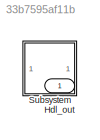
MODEL slx_33b7595af11b
KIND model
CONFIG AbsTol = auto
CONFIG EnableMultiTasking = off
CONFIG FixedStep = auto
CONFIG MaxStep = auto
CONFIG MinStep = auto
CONFIG RelTol = 1e-3
CONFIG SampleTimeConstraint = Unconstrained
CONFIG SolverName = VariableStepAuto
CONFIG StartTime = 0.0
CONFIG StopTime = 10.0
BLOCK [Outport] Hdl_out
  OutDataTypeStr = uint8
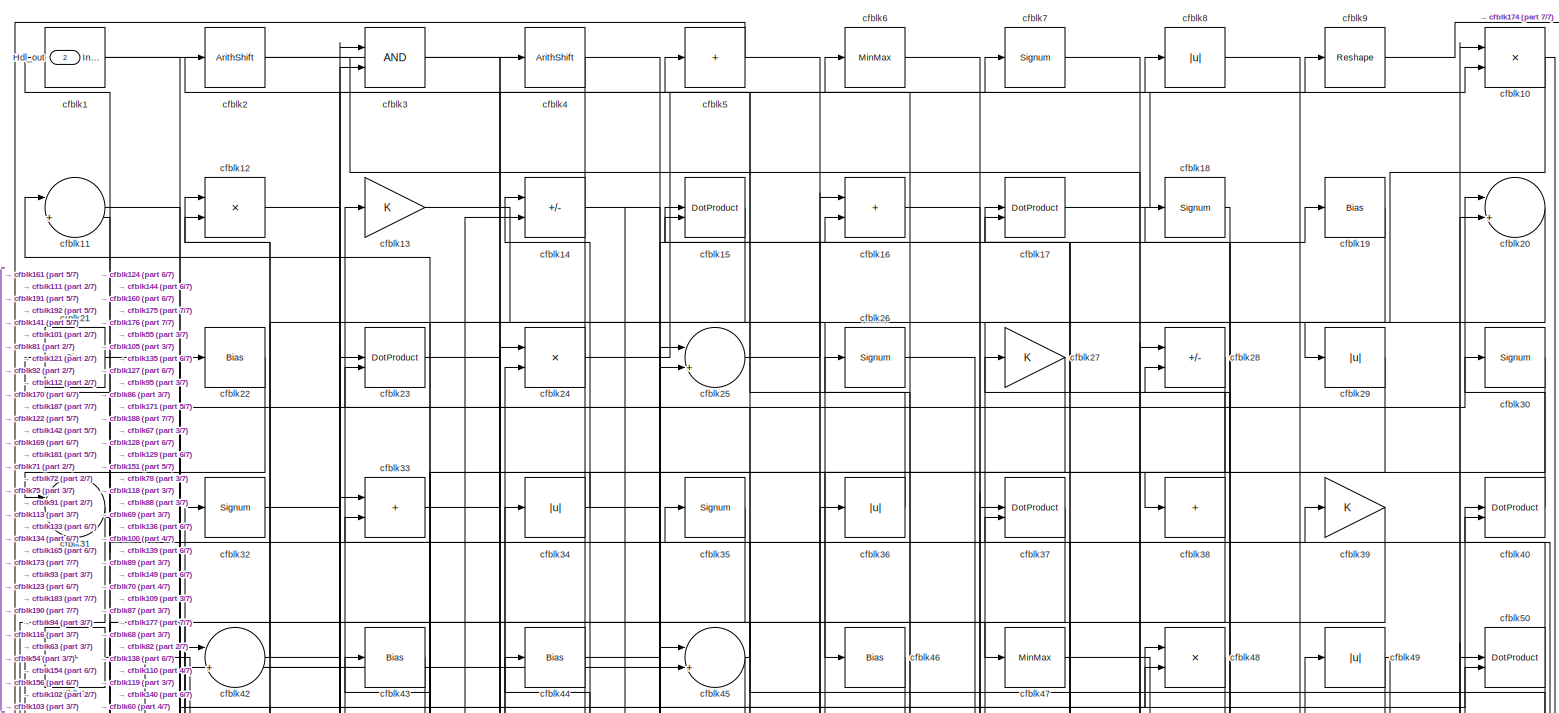
[diagram: Subsystem - part 1/7, full width, top band]
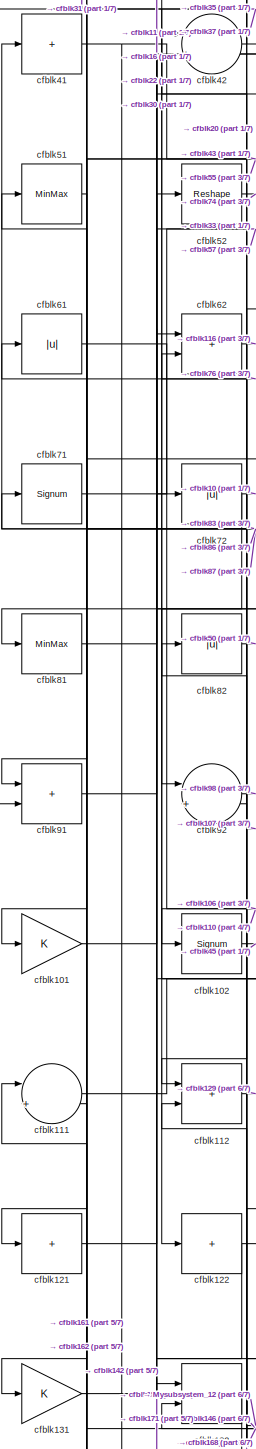
[diagram: Subsystem - part 2/7, middle left region]
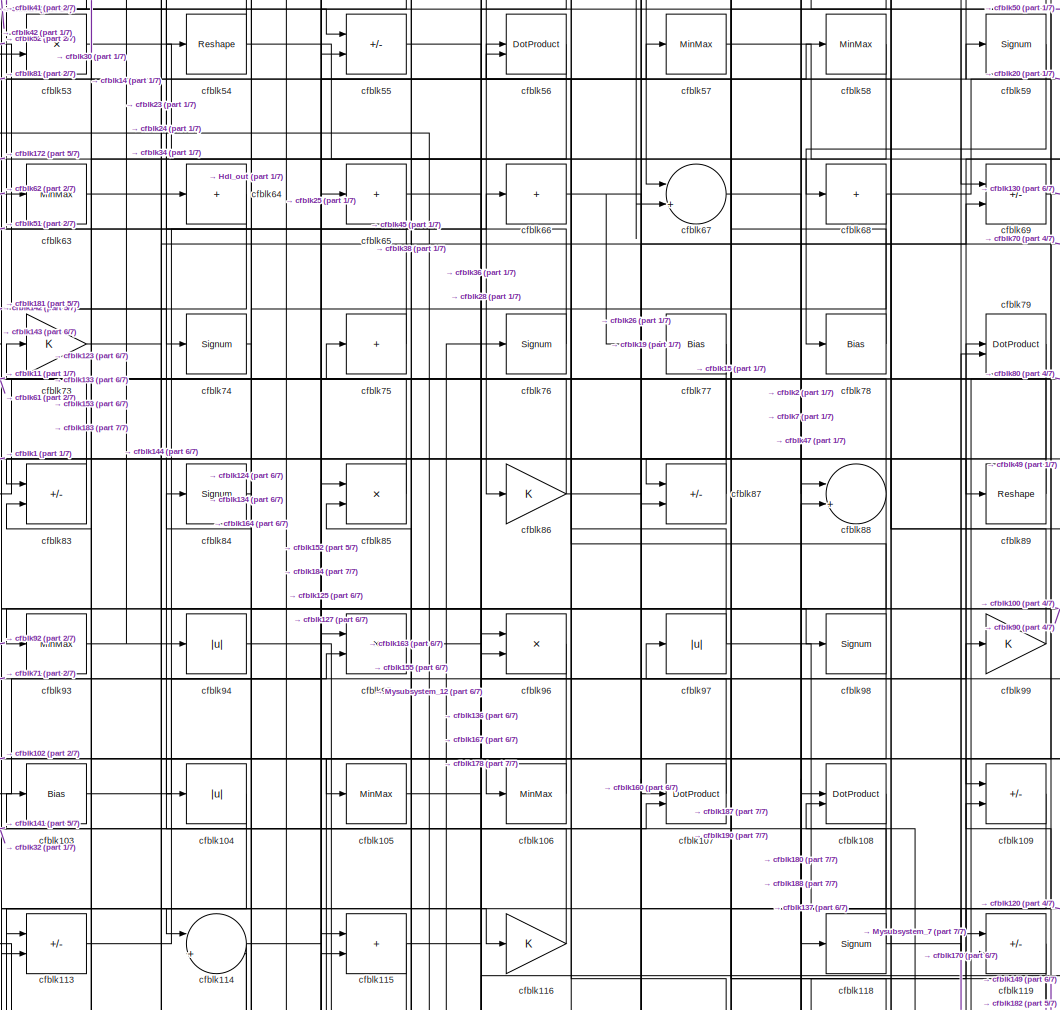
[diagram: Subsystem - part 3/7, central region]
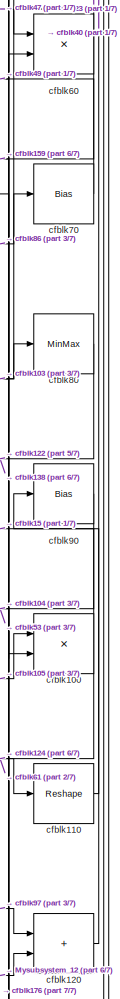
[diagram: Subsystem - part 4/7, middle right region]
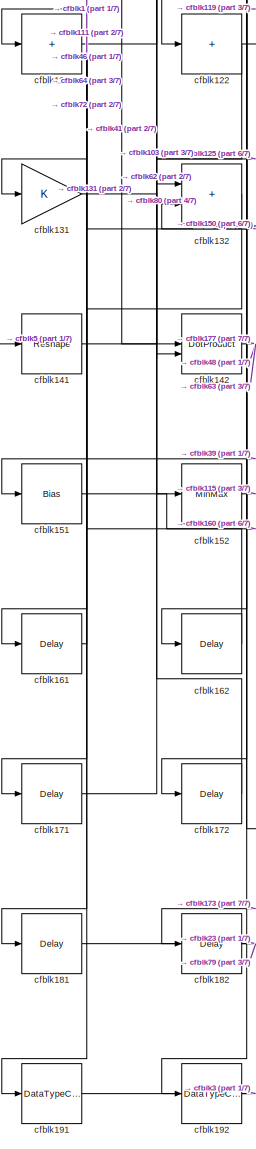
[diagram: Subsystem - part 5/7, bottom left region]
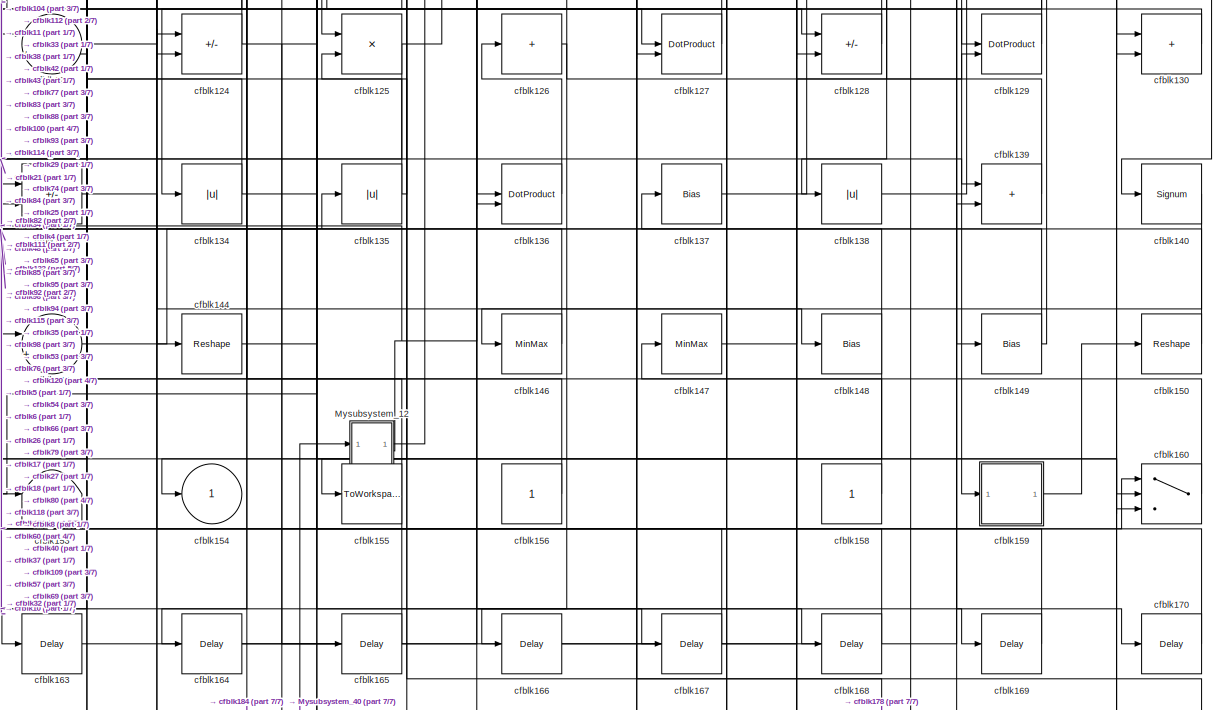
[diagram: Subsystem - part 6/7, full width, bottom band]
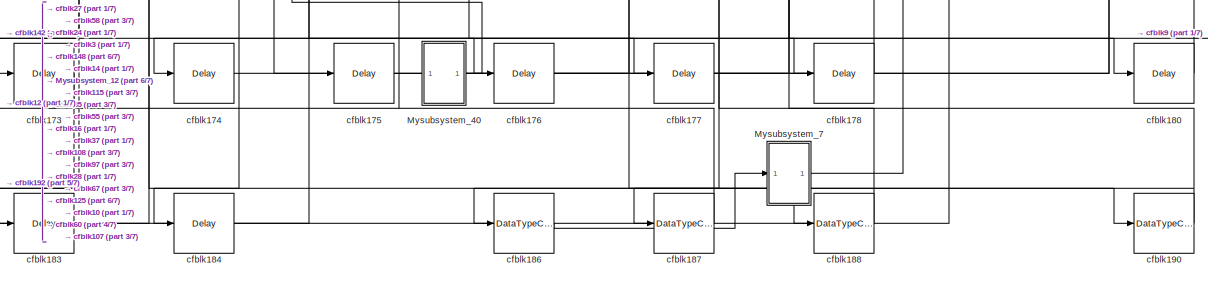
[diagram: Subsystem - part 7/7, full width, bottom band]
BLOCK [SubSystem] Subsystem
BLOCK [Outport] Subsystem/Hdl_out
  OutDataTypeStr = uint8
  Port = 2
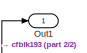
[diagram: Subsystem/Mysubsystem_12 - part 1/2, top left region]
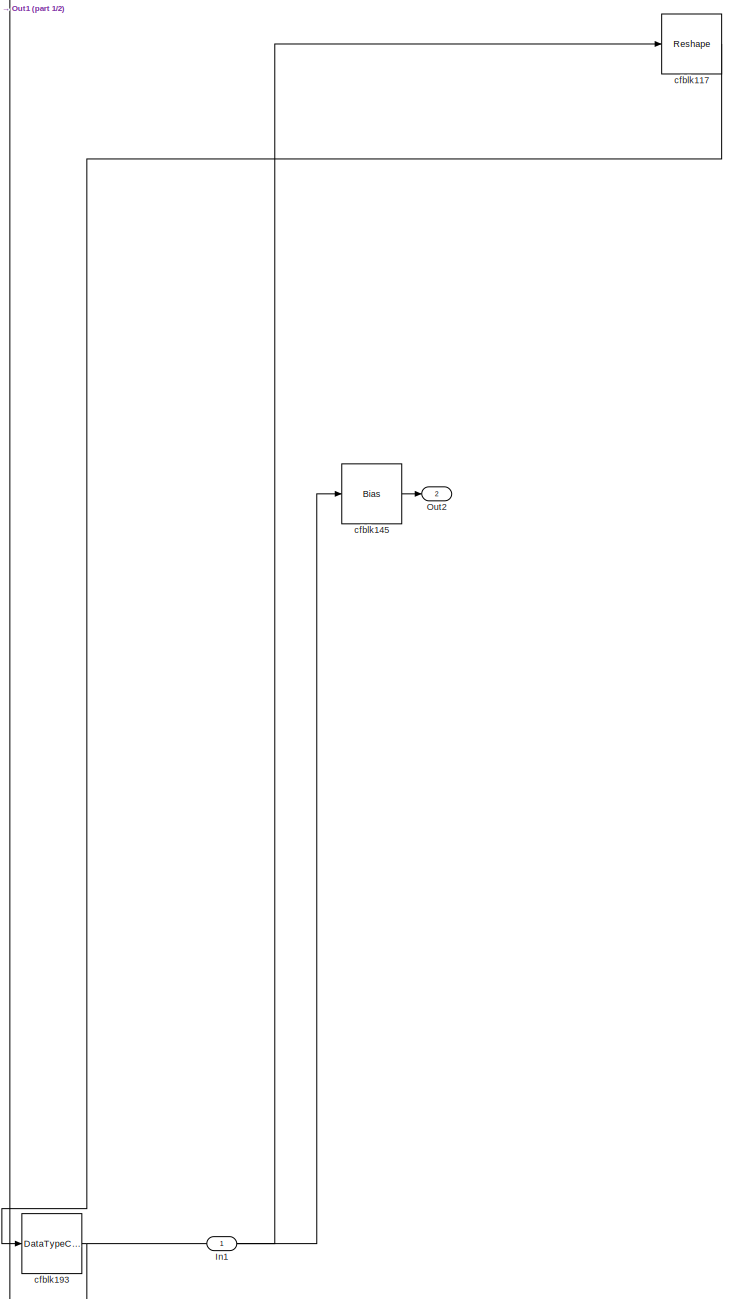
[diagram: Subsystem/Mysubsystem_12 - part 2/2, full width, bottom band]
BLOCK [SubSystem] Subsystem/Mysubsystem_12
  RTWFcnName = Mysubsystem_12
  RTWFcnNameOpts = User specified
  RTWFileNameOpts = Use function name
  RTWSystemCode = Reusable function
  TreatAsAtomicUnit = on
BLOCK [Inport] Subsystem/Mysubsystem_12/In1
BLOCK [Outport] Subsystem/Mysubsystem_12/Out1
BLOCK [Outport] Subsystem/Mysubsystem_12/Out2
  Port = 2
BLOCK [Reshape] Subsystem/Mysubsystem_12/cfblk117
BLOCK [Bias] Subsystem/Mysubsystem_12/cfblk145
  Bias = 0.0
  SaturateOnIntegerOverflow = off
BLOCK [DataTypeConversion] Subsystem/Mysubsystem_12/cfblk193
  RndMeth = Floor
  SaturateOnIntegerOverflow = off
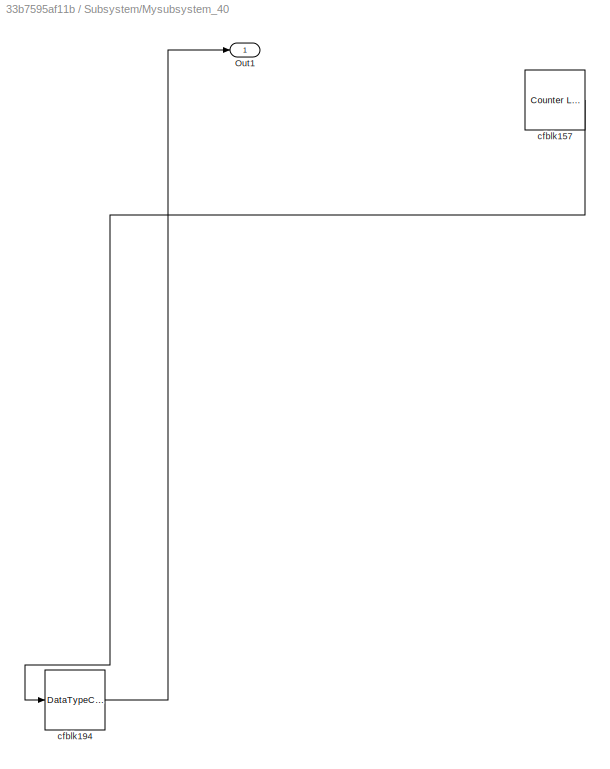
BLOCK [SubSystem] Subsystem/Mysubsystem_40
  RTWFcnName = Mysubsystem_40
  RTWFcnNameOpts = User specified
  RTWFileNameOpts = Use function name
  RTWSystemCode = Reusable function
  TreatAsAtomicUnit = on
BLOCK [Outport] Subsystem/Mysubsystem_40/Out1
BLOCK [Reference] Subsystem/Mysubsystem_40/cfblk157  REF=hdlsllib/Sources/Counter
Limited
  SourceBlock = hdlsllib/Sources/Counter\nLimited
  SourceType = Counter Limited
BLOCK [DataTypeConversion] Subsystem/Mysubsystem_40/cfblk194
  OutDataTypeStr = uint8
  RndMeth = Floor
  SaturateOnIntegerOverflow = off
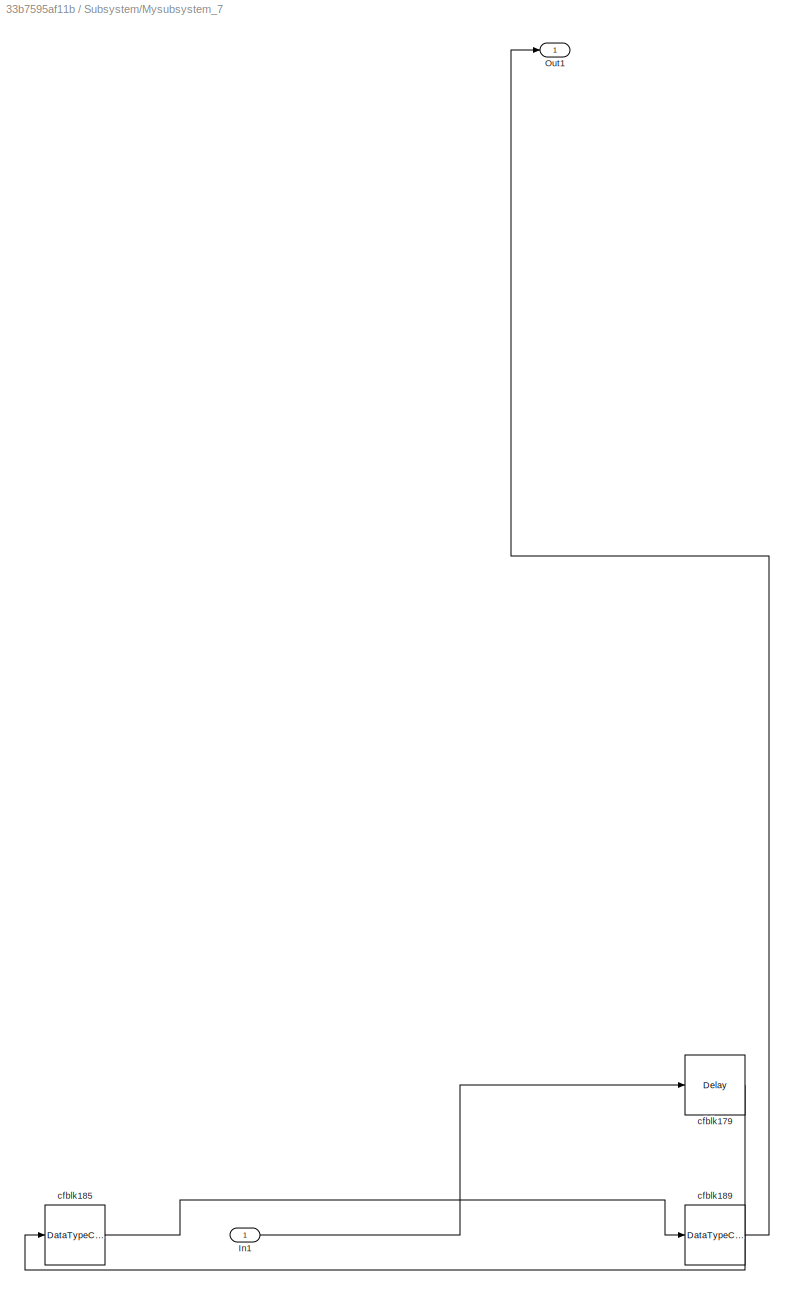
BLOCK [SubSystem] Subsystem/Mysubsystem_7
  RTWFcnName = Mysubsystem_7
  RTWFcnNameOpts = User specified
  RTWFileNameOpts = Use function name
  RTWSystemCode = Reusable function
  TreatAsAtomicUnit = on
BLOCK [Inport] Subsystem/Mysubsystem_7/In1
BLOCK [Outport] Subsystem/Mysubsystem_7/Out1
BLOCK [Delay] Subsystem/Mysubsystem_7/cfblk179
  InputPortMap = u0
  SampleTime = 1
BLOCK [DataTypeConversion] Subsystem/Mysubsystem_7/cfblk185
  OutDataTypeStr = uint8
  RndMeth = Floor
  SaturateOnIntegerOverflow = off
BLOCK [DataTypeConversion] Subsystem/Mysubsystem_7/cfblk189
  OutDataTypeStr = uint8
  RndMeth = Floor
  SaturateOnIntegerOverflow = off
BLOCK [Reference] Subsystem/cfblk1  REF=simulink/Logic and Bit
Operations/Detect
Increase
  LibrarySourceBlock = hdlsllib/Logic and Bit\nOperations/Detect\nIncrease
  SourceBlock = simulink/Logic and Bit\nOperations/Detect\nIncrease
  SourceType = Detect Increase
BLOCK [Product] Subsystem/cfblk10
  Inputs = */
  OutDataTypeStr = uint8
  RndMeth = Zero
  SaturateOnIntegerOverflow = on
BLOCK [Product] Subsystem/cfblk100
  Inputs = */
  OutDataTypeStr = uint8
  RndMeth = Zero
  SaturateOnIntegerOverflow = on
BLOCK [Gain] Subsystem/cfblk101
  OutDataTypeStr = uint8
BLOCK [Signum] Subsystem/cfblk102
BLOCK [Bias] Subsystem/cfblk103
  Bias = 0.0
  SaturateOnIntegerOverflow = off
BLOCK [Abs] Subsystem/cfblk104
  OutDataTypeStr = uint8
  SaturateOnIntegerOverflow = off
BLOCK [MinMax] Subsystem/cfblk105
  OutDataTypeStr = uint8
BLOCK [MinMax] Subsystem/cfblk106
  OutDataTypeStr = uint8
BLOCK [DotProduct] Subsystem/cfblk107
  OutDataTypeStr = uint8
BLOCK [DotProduct] Subsystem/cfblk108
  OutDataTypeStr = uint8
BLOCK [Sum] Subsystem/cfblk109
  IconShape = rectangular
  Inputs = +-
  OutDataTypeStr = uint8
BLOCK [Sum] Subsystem/cfblk11
  Inputs = |++
  OutDataTypeStr = uint8
BLOCK [Reshape] Subsystem/cfblk110
BLOCK [Sum] Subsystem/cfblk111
  Inputs = |++
  OutDataTypeStr = uint8
BLOCK [Sum] Subsystem/cfblk112
  IconShape = rectangular
  OutDataTypeStr = uint8
BLOCK [Sum] Subsystem/cfblk113
  IconShape = rectangular
  Inputs = +-
  OutDataTypeStr = uint8
BLOCK [Sum] Subsystem/cfblk114
  Inputs = |++
  OutDataTypeStr = uint8
BLOCK [Sum] Subsystem/cfblk115
  IconShape = rectangular
  OutDataTypeStr = uint8
BLOCK [Gain] Subsystem/cfblk116
  OutDataTypeStr = uint8
BLOCK [Signum] Subsystem/cfblk118
BLOCK [Sum] Subsystem/cfblk119
  IconShape = rectangular
  Inputs = +-
  OutDataTypeStr = uint8
BLOCK [Product] Subsystem/cfblk12
  Inputs = */
  OutDataTypeStr = uint8
  RndMeth = Zero
  SaturateOnIntegerOverflow = on
BLOCK [Sum] Subsystem/cfblk120
  IconShape = rectangular
  OutDataTypeStr = uint8
BLOCK [Sum] Subsystem/cfblk121
  IconShape = rectangular
  Inputs = +
  OutDataTypeStr = uint8
BLOCK [Sum] Subsystem/cfblk122
  IconShape = rectangular
  Inputs = +
  OutDataTypeStr = uint8
BLOCK [Sum] Subsystem/cfblk123
  Inputs = |++
  OutDataTypeStr = uint8
BLOCK [Sum] Subsystem/cfblk124
  IconShape = rectangular
  Inputs = +-
  OutDataTypeStr = uint8
BLOCK [Product] Subsystem/cfblk125
  Inputs = */
  OutDataTypeStr = uint8
  RndMeth = Zero
  SaturateOnIntegerOverflow = on
BLOCK [Sum] Subsystem/cfblk126
  IconShape = rectangular
  Inputs = +
  OutDataTypeStr = uint8
BLOCK [DotProduct] Subsystem/cfblk127
  OutDataTypeStr = uint8
BLOCK [Sum] Subsystem/cfblk128
  IconShape = rectangular
  Inputs = +-
  OutDataTypeStr = uint8
BLOCK [DotProduct] Subsystem/cfblk129
  OutDataTypeStr = uint8
BLOCK [Gain] Subsystem/cfblk13
  OutDataTypeStr = uint8
BLOCK [Sum] Subsystem/cfblk130
  IconShape = rectangular
  OutDataTypeStr = uint8
BLOCK [Gain] Subsystem/cfblk131
  OutDataTypeStr = uint8
BLOCK [Sum] Subsystem/cfblk132
  IconShape = rectangular
  OutDataTypeStr = uint8
BLOCK [Sum] Subsystem/cfblk133
  IconShape = rectangular
  Inputs = +-
  OutDataTypeStr = uint8
BLOCK [Abs] Subsystem/cfblk134
  OutDataTypeStr = uint8
  SaturateOnIntegerOverflow = off
BLOCK [Abs] Subsystem/cfblk135
  OutDataTypeStr = uint8
  SaturateOnIntegerOverflow = off
BLOCK [DotProduct] Subsystem/cfblk136
  OutDataTypeStr = uint8
BLOCK [Bias] Subsystem/cfblk137
  Bias = 0.0
  SaturateOnIntegerOverflow = off
BLOCK [Abs] Subsystem/cfblk138
  OutDataTypeStr = uint8
  SaturateOnIntegerOverflow = off
BLOCK [Sum] Subsystem/cfblk139
  IconShape = rectangular
  OutDataTypeStr = uint8
BLOCK [Sum] Subsystem/cfblk14
  IconShape = rectangular
  Inputs = +-
  OutDataTypeStr = uint8
BLOCK [Signum] Subsystem/cfblk140
BLOCK [Reshape] Subsystem/cfblk141
BLOCK [DotProduct] Subsystem/cfblk142
  OutDataTypeStr = uint8
BLOCK [Sum] Subsystem/cfblk143
  Inputs = |++
  OutDataTypeStr = uint8
BLOCK [Reshape] Subsystem/cfblk144
BLOCK [MinMax] Subsystem/cfblk146
  OutDataTypeStr = uint8
BLOCK [MinMax] Subsystem/cfblk147
  OutDataTypeStr = uint8
BLOCK [Bias] Subsystem/cfblk148
  Bias = 0.0
  SaturateOnIntegerOverflow = off
BLOCK [Bias] Subsystem/cfblk149
  Bias = 0.0
  SaturateOnIntegerOverflow = off
BLOCK [DotProduct] Subsystem/cfblk15
  OutDataTypeStr = uint8
BLOCK [Reshape] Subsystem/cfblk150
BLOCK [Bias] Subsystem/cfblk151
  Bias = 0.0
  SaturateOnIntegerOverflow = off
BLOCK [MinMax] Subsystem/cfblk152
  OutDataTypeStr = uint8
BLOCK [Terminator] Subsystem/cfblk153
BLOCK [Outport] Subsystem/cfblk154
  OutDataTypeStr = uint8
  VectorParamsAs1DForOutWhenUnconnected = off
BLOCK [ToWorkspace] Subsystem/cfblk155
  MaxDataPoints = inf
  SampleTime = -1
  SaveFormat = Timeseries
  VariableName = simout
BLOCK [Constant] Subsystem/cfblk156
  OutDataTypeStr = uint8
  SampleTime = -1
BLOCK [Constant] Subsystem/cfblk158
  OutDataTypeStr = uint8
  SampleTime = -1
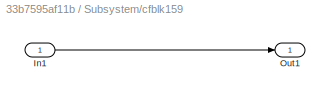
BLOCK [SubSystem] Subsystem/cfblk159
  LibrarySourceBlock = hdlsllib/Ports &\nSubsystems/Subsystem
BLOCK [Inport] Subsystem/cfblk159/In1
BLOCK [Outport] Subsystem/cfblk159/Out1
BLOCK [Sum] Subsystem/cfblk16
  IconShape = rectangular
  OutDataTypeStr = uint8
BLOCK [Switch] Subsystem/cfblk160
  InputSameDT = off
  OutDataTypeStr = uint8
  SaturateOnIntegerOverflow = off
BLOCK [Delay] Subsystem/cfblk161
  InputPortMap = u0
  SampleTime = 1
BLOCK [Delay] Subsystem/cfblk162
  InputPortMap = u0
  SampleTime = 1
BLOCK [Delay] Subsystem/cfblk163
  InputPortMap = u0
  SampleTime = 1
BLOCK [Delay] Subsystem/cfblk164
  InputPortMap = u0
  SampleTime = 1
BLOCK [Delay] Subsystem/cfblk165
  InputPortMap = u0
  SampleTime = 1
BLOCK [Delay] Subsystem/cfblk166
  InputPortMap = u0
  SampleTime = 1
BLOCK [Delay] Subsystem/cfblk167
  InputPortMap = u0
  SampleTime = 1
BLOCK [Delay] Subsystem/cfblk168
  InputPortMap = u0
  SampleTime = 1
BLOCK [Delay] Subsystem/cfblk169
  InputPortMap = u0
  SampleTime = 1
BLOCK [DotProduct] Subsystem/cfblk17
  OutDataTypeStr = uint8
BLOCK [Delay] Subsystem/cfblk170
  InputPortMap = u0
  SampleTime = 1
BLOCK [Delay] Subsystem/cfblk171
  InputPortMap = u0
  SampleTime = 1
BLOCK [Delay] Subsystem/cfblk172
  InputPortMap = u0
  SampleTime = 1
BLOCK [Delay] Subsystem/cfblk173
  InputPortMap = u0
  SampleTime = 1
BLOCK [Delay] Subsystem/cfblk174
  InputPortMap = u0
  SampleTime = 1
BLOCK [Delay] Subsystem/cfblk175
  InputPortMap = u0
  SampleTime = 1
BLOCK [Delay] Subsystem/cfblk176
  InputPortMap = u0
  SampleTime = 1
BLOCK [Delay] Subsystem/cfblk177
  InputPortMap = u0
  SampleTime = 1
BLOCK [Delay] Subsystem/cfblk178
  InputPortMap = u0
  SampleTime = 1
BLOCK [Signum] Subsystem/cfblk18
BLOCK [Delay] Subsystem/cfblk180
  InputPortMap = u0
  SampleTime = 1
BLOCK [Delay] Subsystem/cfblk181
  InputPortMap = u0
  SampleTime = 1
BLOCK [Delay] Subsystem/cfblk182
  InputPortMap = u0
  SampleTime = 1
BLOCK [Delay] Subsystem/cfblk183
  InputPortMap = u0
  SampleTime = 1
BLOCK [Delay] Subsystem/cfblk184
  InputPortMap = u0
  SampleTime = 1
BLOCK [DataTypeConversion] Subsystem/cfblk186
  OutDataTypeStr = uint8
  RndMeth = Floor
  SaturateOnIntegerOverflow = off
BLOCK [DataTypeConversion] Subsystem/cfblk187
  OutDataTypeStr = uint8
  RndMeth = Floor
  SaturateOnIntegerOverflow = off
BLOCK [DataTypeConversion] Subsystem/cfblk188
  OutDataTypeStr = uint8
  RndMeth = Floor
  SaturateOnIntegerOverflow = off
BLOCK [Bias] Subsystem/cfblk19
  Bias = 0.0
  SaturateOnIntegerOverflow = off
BLOCK [DataTypeConversion] Subsystem/cfblk190
  OutDataTypeStr = uint8
  RndMeth = Floor
  SaturateOnIntegerOverflow = off
BLOCK [DataTypeConversion] Subsystem/cfblk191
  OutDataTypeStr = uint8
  RndMeth = Floor
  SaturateOnIntegerOverflow = off
BLOCK [DataTypeConversion] Subsystem/cfblk192
  OutDataTypeStr = uint8
  RndMeth = Floor
  SaturateOnIntegerOverflow = off
BLOCK [ArithShift] Subsystem/cfblk2
  BitShiftNumber = 8
  InputPortMap = u0
BLOCK [Sum] Subsystem/cfblk20
  Inputs = |++
  OutDataTypeStr = uint8
BLOCK [Bias] Subsystem/cfblk21
  Bias = 0.0
  SaturateOnIntegerOverflow = off
BLOCK [Bias] Subsystem/cfblk22
  Bias = 0.0
  SaturateOnIntegerOverflow = off
BLOCK [DotProduct] Subsystem/cfblk23
  OutDataTypeStr = uint8
BLOCK [Product] Subsystem/cfblk24
  Inputs = */
  OutDataTypeStr = uint8
  RndMeth = Zero
  SaturateOnIntegerOverflow = on
BLOCK [Sum] Subsystem/cfblk25
  Inputs = |++
  OutDataTypeStr = uint8
BLOCK [Signum] Subsystem/cfblk26
BLOCK [Gain] Subsystem/cfblk27
  OutDataTypeStr = uint8
BLOCK [Sum] Subsystem/cfblk28
  IconShape = rectangular
  Inputs = +-
  OutDataTypeStr = uint8
BLOCK [Abs] Subsystem/cfblk29
  OutDataTypeStr = uint8
  SaturateOnIntegerOverflow = off
BLOCK [Logic] Subsystem/cfblk3
  AllPortsSameDT = off
  OutDataTypeStr = boolean
BLOCK [Signum] Subsystem/cfblk30
BLOCK [Sum] Subsystem/cfblk31
  Inputs = |++
  OutDataTypeStr = uint8
BLOCK [Signum] Subsystem/cfblk32
BLOCK [Sum] Subsystem/cfblk33
  IconShape = rectangular
  OutDataTypeStr = uint8
BLOCK [Abs] Subsystem/cfblk34
  OutDataTypeStr = uint8
  SaturateOnIntegerOverflow = off
BLOCK [Signum] Subsystem/cfblk35
BLOCK [Abs] Subsystem/cfblk36
  OutDataTypeStr = uint8
  SaturateOnIntegerOverflow = off
BLOCK [DotProduct] Subsystem/cfblk37
  OutDataTypeStr = uint8
BLOCK [Sum] Subsystem/cfblk38
  IconShape = rectangular
  Inputs = +
  OutDataTypeStr = uint8
BLOCK [Gain] Subsystem/cfblk39
  OutDataTypeStr = uint8
BLOCK [ArithShift] Subsystem/cfblk4
  BitShiftNumber = 8
  InputPortMap = u0
BLOCK [DotProduct] Subsystem/cfblk40
  OutDataTypeStr = uint8
BLOCK [Sum] Subsystem/cfblk41
  IconShape = rectangular
  Inputs = +
  OutDataTypeStr = uint8
BLOCK [Sum] Subsystem/cfblk42
  Inputs = |++
  OutDataTypeStr = uint8
BLOCK [Bias] Subsystem/cfblk43
  Bias = 0.0
  SaturateOnIntegerOverflow = off
BLOCK [Bias] Subsystem/cfblk44
  Bias = 0.0
  SaturateOnIntegerOverflow = off
BLOCK [Sum] Subsystem/cfblk45
  Inputs = |++
  OutDataTypeStr = uint8
BLOCK [Bias] Subsystem/cfblk46
  Bias = 0.0
  SaturateOnIntegerOverflow = off
BLOCK [MinMax] Subsystem/cfblk47
  OutDataTypeStr = uint8
BLOCK [Product] Subsystem/cfblk48
  Inputs = */
  OutDataTypeStr = uint8
  RndMeth = Zero
  SaturateOnIntegerOverflow = on
BLOCK [Abs] Subsystem/cfblk49
  OutDataTypeStr = uint8
  SaturateOnIntegerOverflow = off
BLOCK [Sum] Subsystem/cfblk5
  IconShape = rectangular
  Inputs = +
  OutDataTypeStr = uint8
BLOCK [DotProduct] Subsystem/cfblk50
  OutDataTypeStr = uint8
BLOCK [MinMax] Subsystem/cfblk51
  OutDataTypeStr = uint8
BLOCK [Reshape] Subsystem/cfblk52
BLOCK [Product] Subsystem/cfblk53
  Inputs = */
  OutDataTypeStr = uint8
  RndMeth = Zero
  SaturateOnIntegerOverflow = on
BLOCK [Reshape] Subsystem/cfblk54
BLOCK [Sum] Subsystem/cfblk55
  IconShape = rectangular
  Inputs = +-
  OutDataTypeStr = uint8
BLOCK [DotProduct] Subsystem/cfblk56
  OutDataTypeStr = uint8
BLOCK [MinMax] Subsystem/cfblk57
  OutDataTypeStr = uint8
BLOCK [MinMax] Subsystem/cfblk58
  OutDataTypeStr = uint8
BLOCK [Signum] Subsystem/cfblk59
BLOCK [MinMax] Subsystem/cfblk6
  OutDataTypeStr = uint8
BLOCK [Product] Subsystem/cfblk60
  Inputs = */
  OutDataTypeStr = uint8
  RndMeth = Zero
  SaturateOnIntegerOverflow = on
BLOCK [Abs] Subsystem/cfblk61
  OutDataTypeStr = uint8
  SaturateOnIntegerOverflow = off
BLOCK [Sum] Subsystem/cfblk62
  IconShape = rectangular
  OutDataTypeStr = uint8
BLOCK [MinMax] Subsystem/cfblk63
  OutDataTypeStr = uint8
BLOCK [Sum] Subsystem/cfblk64
  IconShape = rectangular
  Inputs = +
  OutDataTypeStr = uint8
BLOCK [Sum] Subsystem/cfblk65
  IconShape = rectangular
  Inputs = +
  OutDataTypeStr = uint8
BLOCK [Sum] Subsystem/cfblk66
  IconShape = rectangular
  Inputs = +
  OutDataTypeStr = uint8
BLOCK [Sum] Subsystem/cfblk67
  Inputs = |++
  OutDataTypeStr = uint8
BLOCK [Sum] Subsystem/cfblk68
  IconShape = rectangular
  Inputs = +
  OutDataTypeStr = uint8
BLOCK [Sum] Subsystem/cfblk69
  IconShape = rectangular
  Inputs = +-
  OutDataTypeStr = uint8
BLOCK [Signum] Subsystem/cfblk7
BLOCK [Bias] Subsystem/cfblk70
  Bias = 0.0
  SaturateOnIntegerOverflow = off
BLOCK [Signum] Subsystem/cfblk71
BLOCK [Abs] Subsystem/cfblk72
  OutDataTypeStr = uint8
  SaturateOnIntegerOverflow = off
BLOCK [Gain] Subsystem/cfblk73
  OutDataTypeStr = uint8
BLOCK [Signum] Subsystem/cfblk74
BLOCK [Sum] Subsystem/cfblk75
  IconShape = rectangular
  Inputs = +
  OutDataTypeStr = uint8
BLOCK [Signum] Subsystem/cfblk76
BLOCK [Bias] Subsystem/cfblk77
  Bias = 0.0
  SaturateOnIntegerOverflow = off
BLOCK [Bias] Subsystem/cfblk78
  Bias = 0.0
  SaturateOnIntegerOverflow = off
BLOCK [DotProduct] Subsystem/cfblk79
  OutDataTypeStr = uint8
BLOCK [Abs] Subsystem/cfblk8
  OutDataTypeStr = uint8
  SaturateOnIntegerOverflow = off
BLOCK [MinMax] Subsystem/cfblk80
  OutDataTypeStr = uint8
BLOCK [MinMax] Subsystem/cfblk81
  OutDataTypeStr = uint8
BLOCK [Abs] Subsystem/cfblk82
  OutDataTypeStr = uint8
  SaturateOnIntegerOverflow = off
BLOCK [Sum] Subsystem/cfblk83
  IconShape = rectangular
  Inputs = +-
  OutDataTypeStr = uint8
BLOCK [Signum] Subsystem/cfblk84
BLOCK [Product] Subsystem/cfblk85
  Inputs = */
  OutDataTypeStr = uint8
  RndMeth = Zero
  SaturateOnIntegerOverflow = on
BLOCK [Gain] Subsystem/cfblk86
  OutDataTypeStr = uint8
BLOCK [Sum] Subsystem/cfblk87
  IconShape = rectangular
  Inputs = +-
  OutDataTypeStr = uint8
BLOCK [Sum] Subsystem/cfblk88
  Inputs = |++
  OutDataTypeStr = uint8
BLOCK [Reshape] Subsystem/cfblk89
BLOCK [Reshape] Subsystem/cfblk9
BLOCK [Bias] Subsystem/cfblk90
  Bias = 0.0
  SaturateOnIntegerOverflow = off
BLOCK [Sum] Subsystem/cfblk91
  IconShape = rectangular
  OutDataTypeStr = uint8
BLOCK [Sum] Subsystem/cfblk92
  Inputs = |++
  OutDataTypeStr = uint8
BLOCK [MinMax] Subsystem/cfblk93
  OutDataTypeStr = uint8
BLOCK [Abs] Subsystem/cfblk94
  OutDataTypeStr = uint8
  SaturateOnIntegerOverflow = off
BLOCK [Product] Subsystem/cfblk95
  Inputs = */
  OutDataTypeStr = uint8
  RndMeth = Zero
  SaturateOnIntegerOverflow = on
BLOCK [Product] Subsystem/cfblk96
  Inputs = */
  OutDataTypeStr = uint8
  RndMeth = Zero
  SaturateOnIntegerOverflow = on
BLOCK [Abs] Subsystem/cfblk97
  OutDataTypeStr = uint8
  SaturateOnIntegerOverflow = off
BLOCK [Signum] Subsystem/cfblk98
BLOCK [Gain] Subsystem/cfblk99
  OutDataTypeStr = uint8
LINE Subsystem/Mysubsystem_12/In1:1 -> Subsystem/Mysubsystem_12/cfblk117:1
LINE Subsystem/Mysubsystem_12/cfblk117:1 -> Subsystem/Mysubsystem_12/cfblk193:1
LINE Subsystem/Mysubsystem_12/cfblk145:1 -> Subsystem/Mysubsystem_12/Out2:1
NET Subsystem/Mysubsystem_12/cfblk193:1 -> Subsystem/Mysubsystem_12/Out1:1, Subsystem/Mysubsystem_12/cfblk145:1
LINE Subsystem/Mysubsystem_12:1 -> Subsystem/cfblk53:2
NET Subsystem/Mysubsystem_12:2 -> Subsystem/cfblk120:2, Subsystem/cfblk82:1
LINE Subsystem/Mysubsystem_40/cfblk157:1 -> Subsystem/Mysubsystem_40/cfblk194:1
LINE Subsystem/Mysubsystem_40/cfblk194:1 -> Subsystem/Mysubsystem_40/Out1:1
LINE Subsystem/Mysubsystem_40:1 -> Subsystem/Mysubsystem_12:1
LINE Subsystem/Mysubsystem_7/In1:1 -> Subsystem/Mysubsystem_7/cfblk179:1
LINE Subsystem/Mysubsystem_7/cfblk179:1 -> Subsystem/Mysubsystem_7/cfblk185:1
LINE Subsystem/Mysubsystem_7/cfblk185:1 -> Subsystem/Mysubsystem_7/cfblk189:1
LINE Subsystem/Mysubsystem_7/cfblk189:1 -> Subsystem/Mysubsystem_7/Out1:1
LINE Subsystem/Mysubsystem_7:1 -> Subsystem/cfblk108:2
NET Subsystem/cfblk100:1 -> Subsystem/cfblk124:2, Subsystem/cfblk15:2
LINE Subsystem/cfblk101:1 -> Subsystem/cfblk45:2
LINE Subsystem/cfblk102:1 -> Subsystem/cfblk45:1
NET Subsystem/cfblk103:1 -> Subsystem/cfblk25:1, Subsystem/cfblk80:1, Subsystem/cfblk95:2
LINE Subsystem/cfblk104:1 -> Subsystem/cfblk143:1
LINE Subsystem/cfblk105:1 -> Subsystem/cfblk100:1
LINE Subsystem/cfblk106:1 -> Subsystem/cfblk102:1
LINE Subsystem/cfblk107:1 -> Subsystem/cfblk71:1
LINE Subsystem/cfblk108:1 -> Subsystem/cfblk187:1
LINE Subsystem/cfblk109:1 -> Subsystem/cfblk113:2
NET Subsystem/cfblk10:1 -> Subsystem/cfblk140:1, Subsystem/cfblk29:1
LINE Subsystem/cfblk110:1 -> Subsystem/cfblk40:1
NET Subsystem/cfblk111:1 -> Subsystem/cfblk16:1, Subsystem/cfblk30:1
LINE Subsystem/cfblk112:1 -> Subsystem/cfblk129:1
NET Subsystem/cfblk113:1 -> Subsystem/cfblk66:1, Subsystem/cfblk69:2
NET Subsystem/cfblk114:1 -> Subsystem/cfblk134:1, Subsystem/cfblk58:1
NET Subsystem/cfblk115:1 -> Subsystem/cfblk107:2, Subsystem/cfblk163:1, Subsystem/cfblk99:1
LINE Subsystem/cfblk116:1 -> Subsystem/cfblk24:2
NET Subsystem/cfblk118:1 -> Subsystem/cfblk170:1, Subsystem/cfblk32:1
LINE Subsystem/cfblk119:1 -> Subsystem/cfblk182:1
LINE Subsystem/cfblk11:1 -> Subsystem/cfblk72:1
LINE Subsystem/cfblk120:1 -> Subsystem/cfblk90:1
NET Subsystem/cfblk121:1 -> Subsystem/cfblk22:1, Subsystem/cfblk50:2
NET Subsystem/cfblk122:1 -> Subsystem/cfblk142:2, Subsystem/cfblk39:1
LINE Subsystem/cfblk123:1 -> Subsystem/cfblk4:1
NET Subsystem/cfblk124:1 -> Subsystem/cfblk114:2, Subsystem/cfblk165:1, Subsystem/cfblk48:1
NET Subsystem/cfblk125:1 -> Subsystem/cfblk162:1, Subsystem/cfblk76:1
LINE Subsystem/cfblk126:1 -> Subsystem/cfblk166:1
LINE Subsystem/cfblk127:1 -> Subsystem/cfblk26:1
NET Subsystem/cfblk128:1 -> Subsystem/cfblk17:2, Subsystem/cfblk27:1
LINE Subsystem/cfblk129:1 -> Subsystem/cfblk37:2
LINE Subsystem/cfblk12:1 -> Subsystem/cfblk47:1
LINE Subsystem/cfblk130:1 -> Subsystem/cfblk123:1
LINE Subsystem/cfblk131:1 -> Subsystem/cfblk152:1
LINE Subsystem/cfblk132:1 -> Subsystem/cfblk191:1
NET Subsystem/cfblk133:1 -> Subsystem/cfblk148:1, Subsystem/cfblk83:2
NET Subsystem/cfblk134:1 -> Subsystem/cfblk168:1, Subsystem/cfblk42:2, Subsystem/cfblk65:1
NET Subsystem/cfblk135:1 -> Subsystem/cfblk33:2, Subsystem/cfblk35:1
LINE Subsystem/cfblk136:1 -> Subsystem/cfblk126:1
LINE Subsystem/cfblk137:1 -> Subsystem/cfblk79:1
LINE Subsystem/cfblk138:1 -> Subsystem/cfblk40:2
NET Subsystem/cfblk139:1 -> Subsystem/cfblk18:1, Subsystem/cfblk6:1
LINE Subsystem/cfblk13:1 -> Subsystem/cfblk46:1
LINE Subsystem/cfblk140:1 -> Subsystem/cfblk146:1
LINE Subsystem/cfblk141:1 -> Subsystem/cfblk103:1
NET Subsystem/cfblk142:1 -> Subsystem/cfblk177:1, Subsystem/cfblk48:2, Subsystem/cfblk63:1
LINE Subsystem/cfblk143:1 -> Subsystem/cfblk95:1
LINE Subsystem/cfblk144:1 -> Subsystem/cfblk25:2
NET Subsystem/cfblk146:1 -> Subsystem/cfblk111:2, Subsystem/cfblk135:1
LINE Subsystem/cfblk147:1 -> Subsystem/cfblk129:2
NET Subsystem/cfblk148:1 -> Subsystem/cfblk184:1, Subsystem/cfblk92:2
NET Subsystem/cfblk149:1 -> Subsystem/cfblk109:2, Subsystem/cfblk137:1
NET Subsystem/cfblk14:1 -> Subsystem/cfblk175:1, Subsystem/cfblk176:1
LINE Subsystem/cfblk150:1 -> Subsystem/cfblk132:2
LINE Subsystem/cfblk151:1 -> Subsystem/cfblk160:1
LINE Subsystem/cfblk152:1 -> Subsystem/cfblk115:1
NET Subsystem/cfblk156:1 -> Subsystem/cfblk43:1, Subsystem/cfblk44:1
LINE Subsystem/cfblk158:1 -> Subsystem/cfblk147:1
LINE Subsystem/cfblk159/In1:1 -> Subsystem/cfblk159/Out1:1
LINE Subsystem/cfblk159:1 -> Subsystem/cfblk150:1
LINE Subsystem/cfblk15:1 -> Subsystem/cfblk113:1
LINE Subsystem/cfblk160:1 -> Subsystem/cfblk84:1
LINE Subsystem/cfblk161:1 -> Subsystem/cfblk1:1
LINE Subsystem/cfblk162:1 -> Subsystem/cfblk111:1
LINE Subsystem/cfblk163:1 -> Subsystem/cfblk96:1
LINE Subsystem/cfblk164:1 -> Subsystem/cfblk88:2
LINE Subsystem/cfblk165:1 -> Subsystem/cfblk11:1
LINE Subsystem/cfblk166:1 -> Subsystem/cfblk139:2
LINE Subsystem/cfblk167:1 -> Subsystem/cfblk85:1
LINE Subsystem/cfblk168:1 -> Subsystem/cfblk112:2
LINE Subsystem/cfblk169:1 -> Subsystem/cfblk124:1
LINE Subsystem/cfblk16:1 -> Subsystem/cfblk188:1
LINE Subsystem/cfblk170:1 -> Subsystem/cfblk42:1
LINE Subsystem/cfblk171:1 -> Subsystem/cfblk62:1
LINE Subsystem/cfblk172:1 -> Subsystem/cfblk132:1
LINE Subsystem/cfblk173:1 -> Subsystem/cfblk192:1
LINE Subsystem/cfblk174:1 -> Subsystem/cfblk37:1
LINE Subsystem/cfblk175:1 -> Subsystem/cfblk28:1
LINE Subsystem/cfblk176:1 -> Subsystem/cfblk60:2
LINE Subsystem/cfblk177:1 -> Subsystem/cfblk10:1
LINE Subsystem/cfblk178:1 -> Subsystem/cfblk125:2
LINE Subsystem/cfblk17:1 -> Subsystem/cfblk9:1
LINE Subsystem/cfblk180:1 -> Subsystem/cfblk107:1
LINE Subsystem/cfblk181:1 -> Subsystem/cfblk23:1
LINE Subsystem/cfblk182:1 -> Subsystem/cfblk79:2
LINE Subsystem/cfblk183:1 -> Subsystem/cfblk24:1
LINE Subsystem/cfblk184:1 -> Subsystem/cfblk115:2
LINE Subsystem/cfblk186:1 -> Subsystem/Mysubsystem_7:1
NET Subsystem/cfblk187:1 -> Subsystem/cfblk12:2, Subsystem/cfblk85:2
LINE Subsystem/cfblk188:1 -> Subsystem/cfblk108:1
LINE Subsystem/cfblk18:1 -> Subsystem/cfblk38:1
NET Subsystem/cfblk190:1 -> Subsystem/cfblk186:1, Subsystem/cfblk97:1
LINE Subsystem/cfblk191:1 -> Subsystem/cfblk3:1
LINE Subsystem/cfblk192:1 -> Subsystem/cfblk3:2
LINE Subsystem/cfblk19:1 -> Subsystem/cfblk67:1
LINE Subsystem/cfblk1:1 -> Subsystem/cfblk89:1
LINE Subsystem/cfblk20:1 -> Subsystem/cfblk112:1
LINE Subsystem/cfblk21:1 -> Subsystem/cfblk139:1
NET Subsystem/cfblk22:1 -> Subsystem/cfblk31:1, Subsystem/cfblk31:2
LINE Subsystem/cfblk23:1 -> Subsystem/cfblk94:1
LINE Subsystem/cfblk24:1 -> Subsystem/cfblk7:1
LINE Subsystem/cfblk25:1 -> Subsystem/cfblk19:1
LINE Subsystem/cfblk26:1 -> Subsystem/cfblk67:2
LINE Subsystem/cfblk27:1 -> Subsystem/cfblk173:1
LINE Subsystem/cfblk28:1 -> Subsystem/cfblk86:1
LINE Subsystem/cfblk29:1 -> Subsystem/cfblk154:1
LINE Subsystem/cfblk2:1 -> Subsystem/cfblk118:1
LINE Subsystem/cfblk30:1 -> Subsystem/cfblk93:1
LINE Subsystem/cfblk31:1 -> Subsystem/cfblk91:2
LINE Subsystem/cfblk32:1 -> Subsystem/cfblk169:1
LINE Subsystem/cfblk33:1 -> Subsystem/cfblk8:1
NET Subsystem/cfblk34:1 -> Subsystem/cfblk128:1, Subsystem/cfblk14:1
NET Subsystem/cfblk35:1 -> Subsystem/cfblk101:1, Subsystem/cfblk92:1
LINE Subsystem/cfblk36:1 -> Subsystem/cfblk2:1
LINE Subsystem/cfblk37:1 -> Subsystem/cfblk81:1
NET Subsystem/cfblk38:1 -> Subsystem/cfblk105:1, Subsystem/cfblk133:1, Subsystem/cfblk17:1
LINE Subsystem/cfblk39:1 -> Subsystem/cfblk151:1
LINE Subsystem/cfblk3:1 -> Subsystem/cfblk190:1
LINE Subsystem/cfblk40:1 -> Subsystem/cfblk20:1
NET Subsystem/cfblk41:1 -> Subsystem/cfblk142:1, Subsystem/cfblk55:1
NET Subsystem/cfblk42:1 -> Subsystem/cfblk12:1, Subsystem/cfblk54:1
LINE Subsystem/cfblk43:1 -> Subsystem/cfblk91:1
LINE Subsystem/cfblk44:1 -> Subsystem/cfblk16:2
NET Subsystem/cfblk45:1 -> Subsystem/cfblk55:2, Subsystem/cfblk5:1
LINE Subsystem/cfblk46:1 -> Subsystem/cfblk171:1
NET Subsystem/cfblk47:1 -> Subsystem/cfblk60:1, Subsystem/cfblk69:1
LINE Subsystem/cfblk48:1 -> Subsystem/cfblk136:2
NET Subsystem/cfblk49:1 -> Subsystem/cfblk109:1, Subsystem/cfblk87:1
LINE Subsystem/cfblk4:1 -> Subsystem/cfblk160:3
NET Subsystem/cfblk50:1 -> Subsystem/cfblk119:1, Subsystem/cfblk21:1
LINE Subsystem/cfblk51:1 -> Subsystem/cfblk131:1
LINE Subsystem/cfblk52:1 -> Subsystem/cfblk74:1
NET Subsystem/cfblk53:1 -> Subsystem/cfblk100:2, Subsystem/cfblk68:1
NET Subsystem/cfblk54:1 -> Subsystem/Hdl_out:1, Subsystem/cfblk136:1
LINE Subsystem/cfblk55:1 -> Subsystem/cfblk178:1
NET Subsystem/cfblk56:1 -> Subsystem/cfblk172:1, Subsystem/cfblk83:1
LINE Subsystem/cfblk57:1 -> Subsystem/cfblk130:2
LINE Subsystem/cfblk58:1 -> Subsystem/cfblk183:1
LINE Subsystem/cfblk59:1 -> Subsystem/cfblk78:1
NET Subsystem/cfblk5:1 -> Subsystem/cfblk127:2, Subsystem/cfblk141:1
NET Subsystem/cfblk60:1 -> Subsystem/cfblk159:1, Subsystem/cfblk23:2
LINE Subsystem/cfblk61:1 -> Subsystem/cfblk110:1
LINE Subsystem/cfblk62:1 -> Subsystem/cfblk116:1
LINE Subsystem/cfblk63:1 -> Subsystem/cfblk34:1
LINE Subsystem/cfblk64:1 -> Subsystem/cfblk181:1
LINE Subsystem/cfblk65:1 -> Subsystem/cfblk167:1
NET Subsystem/cfblk66:1 -> Subsystem/cfblk119:2, Subsystem/cfblk160:2, Subsystem/cfblk77:1
LINE Subsystem/cfblk67:1 -> Subsystem/cfblk180:1
NET Subsystem/cfblk68:1 -> Subsystem/cfblk106:1, Subsystem/cfblk114:1, Subsystem/cfblk20:2
LINE Subsystem/cfblk69:1 -> Subsystem/cfblk130:1
LINE Subsystem/cfblk6:1 -> Subsystem/cfblk128:2
LINE Subsystem/cfblk70:1 -> Subsystem/cfblk49:1
LINE Subsystem/cfblk71:1 -> Subsystem/cfblk33:1
NET Subsystem/cfblk72:1 -> Subsystem/cfblk10:2, Subsystem/cfblk161:1
LINE Subsystem/cfblk73:1 -> Subsystem/cfblk96:2
LINE Subsystem/cfblk74:1 -> Subsystem/cfblk164:1
LINE Subsystem/cfblk75:1 -> Subsystem/cfblk13:1
LINE Subsystem/cfblk76:1 -> Subsystem/cfblk51:1
LINE Subsystem/cfblk77:1 -> Subsystem/cfblk143:2
LINE Subsystem/cfblk78:1 -> Subsystem/cfblk15:1
LINE Subsystem/cfblk79:1 -> Subsystem/cfblk87:2
LINE Subsystem/cfblk7:1 -> Subsystem/cfblk88:1
NET Subsystem/cfblk80:1 -> Subsystem/cfblk122:1, Subsystem/cfblk138:1
NET Subsystem/cfblk81:1 -> Subsystem/cfblk121:1, Subsystem/cfblk57:1
LINE Subsystem/cfblk82:1 -> Subsystem/cfblk50:1
LINE Subsystem/cfblk83:1 -> Subsystem/cfblk41:1
LINE Subsystem/cfblk84:1 -> Subsystem/cfblk64:1
LINE Subsystem/cfblk85:1 -> Subsystem/cfblk73:1
NET Subsystem/cfblk86:1 -> Subsystem/cfblk62:2, Subsystem/cfblk70:1
LINE Subsystem/cfblk87:1 -> Subsystem/cfblk61:1
NET Subsystem/cfblk88:1 -> Subsystem/cfblk11:2, Subsystem/cfblk133:2, Subsystem/cfblk153:1
LINE Subsystem/cfblk89:1 -> Subsystem/cfblk28:2
LINE Subsystem/cfblk8:1 -> Subsystem/cfblk149:1
LINE Subsystem/cfblk90:1 -> Subsystem/cfblk104:1
LINE Subsystem/cfblk91:1 -> Subsystem/cfblk52:1
LINE Subsystem/cfblk92:1 -> Subsystem/cfblk98:1
NET Subsystem/cfblk93:1 -> Subsystem/cfblk144:1, Subsystem/cfblk14:2
NET Subsystem/cfblk94:1 -> Subsystem/cfblk127:1, Subsystem/cfblk59:1
NET Subsystem/cfblk95:1 -> Subsystem/cfblk36:1, Subsystem/cfblk75:1
NET Subsystem/cfblk96:1 -> Subsystem/cfblk123:2, Subsystem/cfblk125:1
NET Subsystem/cfblk97:1 -> Subsystem/cfblk120:1, Subsystem/cfblk56:1
NET Subsystem/cfblk98:1 -> Subsystem/cfblk155:1, Subsystem/cfblk56:2
LINE Subsystem/cfblk99:1 -> Subsystem/cfblk53:1
LINE Subsystem/cfblk9:1 -> Subsystem/cfblk174:1
note: NET lines group one-source signal fan-out (src -> all destinations, sorted); 1:1 wires keep LINE
